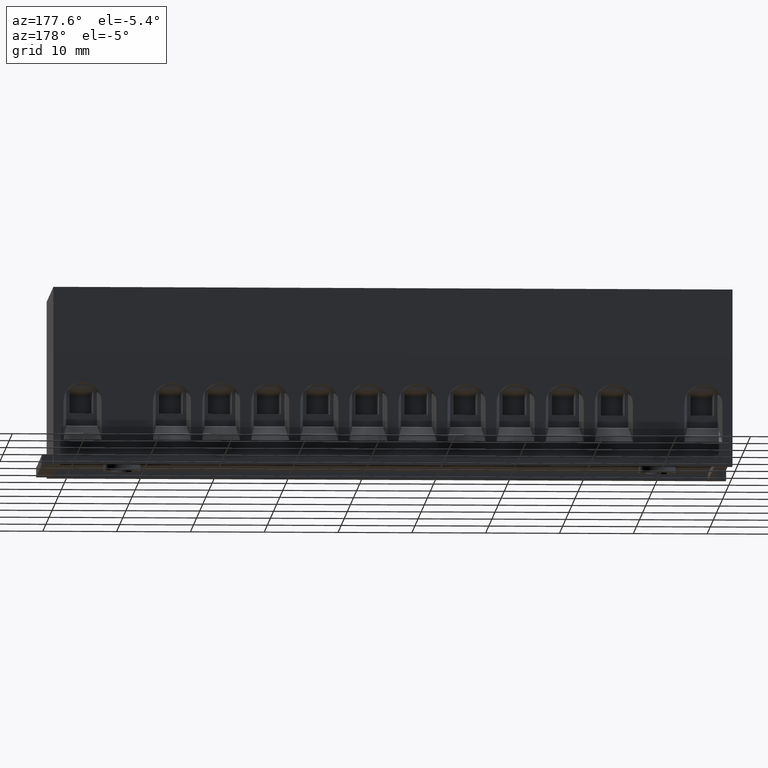
[diagram: clean part render]
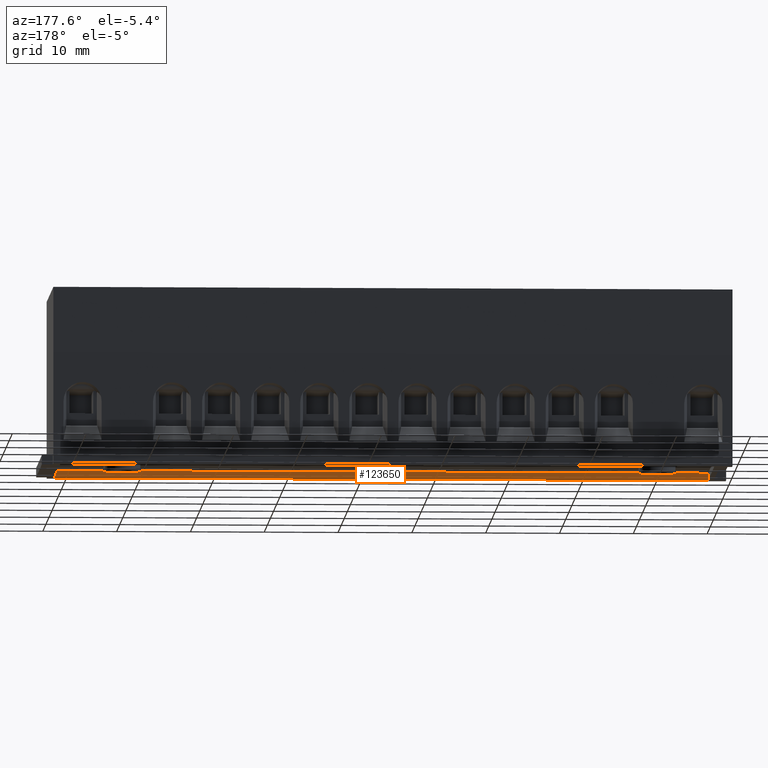
[diagram: same view with one face highlighted and labeled with its STEP entity id]
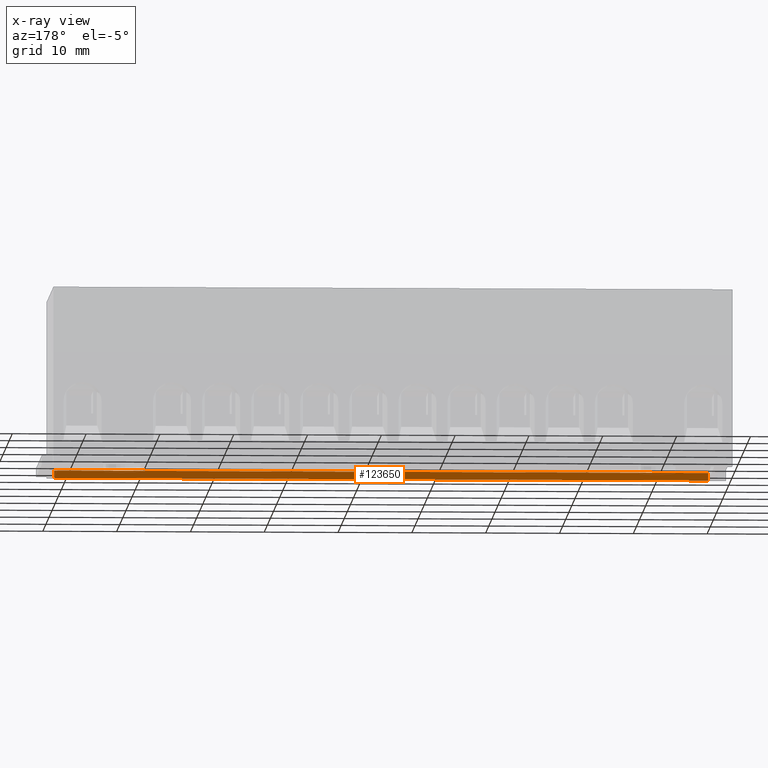
[diagram: x-ray of the same camera — body ghosted, the highlighted face saturated]
A machine part, auxiliary view. The second image highlights one B-rep face of the part: STEP entity #123650.
The next image is the same camera in x-ray: the body ghosted, the highlighted face saturated — about 0% of this face is hidden behind the body in this view.
In plain terms, the highlighted planar face has unit normal (0, 1, -0).
Its self-contained STEP definition (entity closure, byte-faithful):
#119950=CARTESIAN_POINT('',(-133.058523662906,-194.978083115857,
20.9484496022109));
#119960=VERTEX_POINT('',#119950);
#120010=CARTESIAN_POINT('',(-163.266877277511,-194.978083115857,
20.9484496022109));
#120020=DIRECTION('',(1.,9.24446373305873E-33,4.16333634234434E-17));
#120030=VECTOR('',#120020,1.);
#120040=LINE('',#120010,#120030);
#120050=CARTESIAN_POINT('',(-44.4561518197677,-194.978083115857,
20.9484496022109));
#120060=VERTEX_POINT('',#120050);
#120070=EDGE_CURVE('',#119960,#120060,#120040,.T.);
#122160=CARTESIAN_POINT('',(-133.058523662906,-195.978083115857,
20.9484496022109));
#122170=DIRECTION('',(4.62223186652936E-33,1.,-3.33066907387547E-16));
#122180=VECTOR('',#122170,1.);
#122190=LINE('',#122160,#122180);
#122200=CARTESIAN_POINT('',(-133.058523662906,-195.978083115857,
20.9484496022109));
#122210=VERTEX_POINT('',#122200);
#122220=EDGE_CURVE('',#122210,#119960,#122190,.T.);
#122910=CARTESIAN_POINT('',(-44.4561518197677,-195.978083115857,
20.9484496022109));
#122920=VERTEX_POINT('',#122910);
#122950=CARTESIAN_POINT('',(-219.364675482674,-195.978083115857,
20.9484496022109));
#122960=DIRECTION('',(-1.,-1.23259516440783E-32,-4.16333634234434E-17));
#122970=VECTOR('',#122960,1.);
#122980=LINE('',#122950,#122970);
#122990=EDGE_CURVE('',#122920,#122210,#122980,.T.);
#123490=CARTESIAN_POINT('',(-79.3585236629061,-195.978083115857,
20.9484496022109));
#123500=DIRECTION('',(4.16333634234434E-17,-3.33066907387547E-16,-1.));
#123510=DIRECTION('',(-1.,-9.24446373305873E-33,-4.16333634234434E-17));
#123520=AXIS2_PLACEMENT_3D('',#123490,#123500,#123510);
#123530=PLANE('',#123520);
#123540=ORIENTED_EDGE('',*,*,#122220,.T.);
#123550=ORIENTED_EDGE('',*,*,#122990,.T.);
#123560=CARTESIAN_POINT('',(-44.4561518197677,-195.978083115857,
20.9484496022109));
#123570=DIRECTION('',(4.62223186652936E-33,1.,-3.33066907387547E-16));
#123580=VECTOR('',#123570,1.);
#123590=LINE('',#123560,#123580);
#123600=EDGE_CURVE('',#122920,#120060,#123590,.T.);
#123610=ORIENTED_EDGE('',*,*,#123600,.F.);
#123620=ORIENTED_EDGE('',*,*,#120070,.T.);
#123630=EDGE_LOOP('',(#123620,#123610,#123550,#123540));
#123640=FACE_OUTER_BOUND('',#123630,.T.);
#123650=ADVANCED_FACE('',(#123640),#123530,.T.);